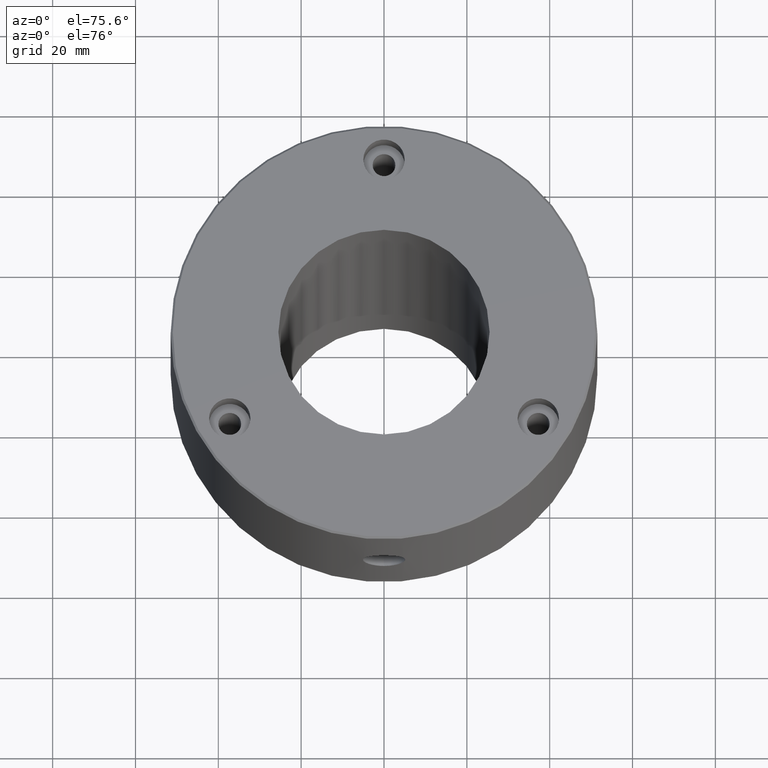
[diagram: clean part render]
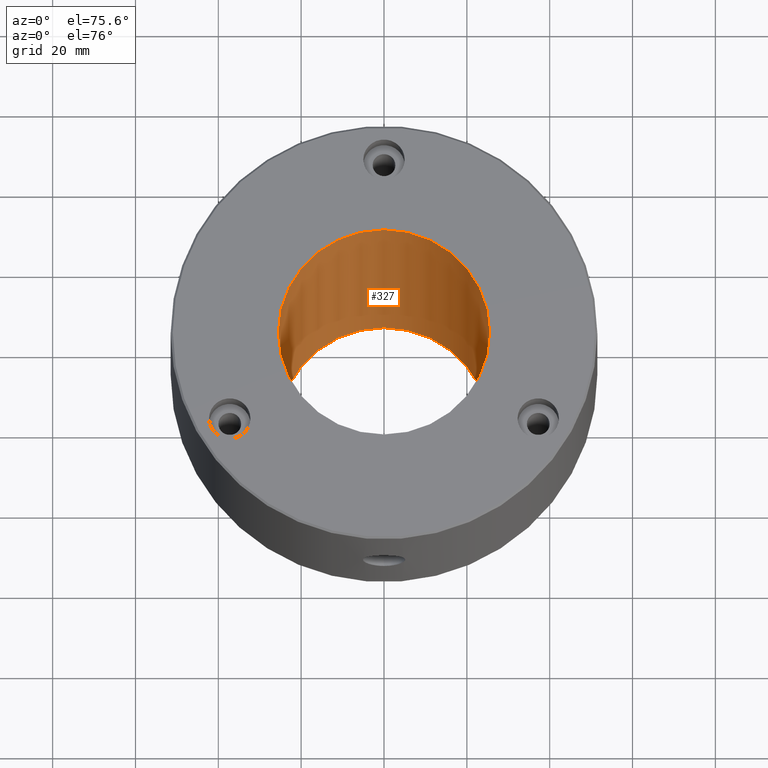
[diagram: same view with one face highlighted and labeled with its STEP entity id]
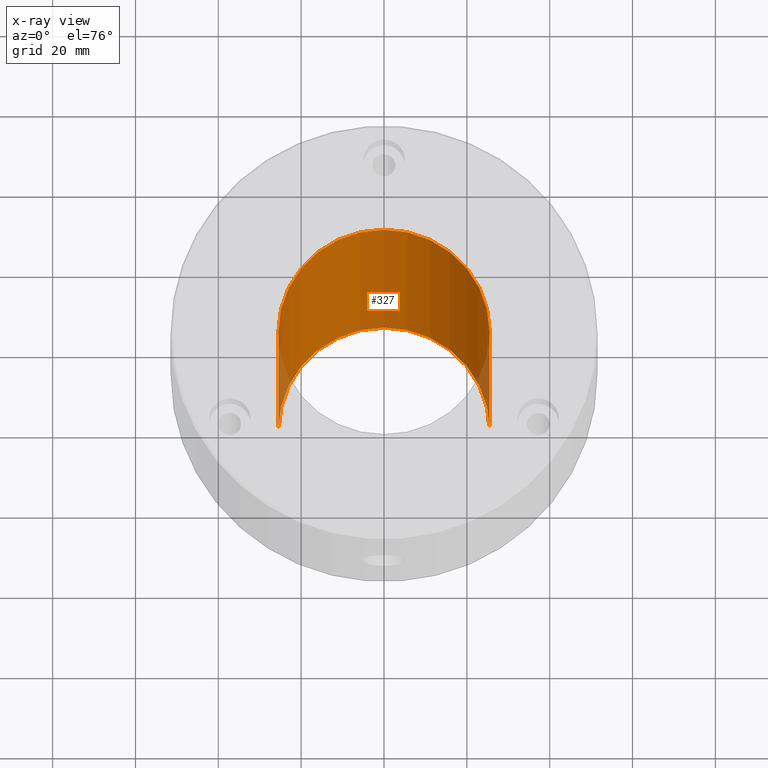
[diagram: x-ray of the same camera — body ghosted, the highlighted face saturated]
A machine part, auxiliary view. The second image highlights one B-rep face of the part: STEP entity #327.
The next image is the same camera in x-ray: the body ghosted, the highlighted face saturated — about 4% of this face is hidden behind the body in this view.
In plain terms, the highlighted cylindrical surface (partial cylindrical patch) has radius 25.5 mm, axis along (-0, -0, -1).
Its self-contained STEP definition (entity closure, byte-faithful):
#19 = VECTOR ( 'NONE', #207, 1000.000000000000000 ) ;
#22 = VECTOR ( 'NONE', #1223, 1000.000000000000000 ) ;
#74 = EDGE_CURVE ( 'NONE', #1121, #927, #299, .T. ) ;
#121 = DIRECTION ( 'NONE',  ( -1.000000000000000000, 0.000000000000000000, 0.000000000000000000 ) ) ;
#124 = AXIS2_PLACEMENT_3D ( 'NONE', #1184, #231, #617 ) ;
#207 = DIRECTION ( 'NONE',  ( -0.000000000000000000, -0.000000000000000000, -1.000000000000000000 ) ) ;
#231 = DIRECTION ( 'NONE',  ( -0.000000000000000000, -0.000000000000000000, -1.000000000000000000 ) ) ;
#275 = CIRCLE ( 'NONE', #506, 25.50000000000000000 ) ;
#278 = ORIENTED_EDGE ( 'NONE', *, *, #766, .F. ) ;
#299 = LINE ( 'NONE', #1065, #19 ) ;
#327 = ADVANCED_FACE ( 'NONE', ( #1004 ), #1100, .F. ) ;
#402 = CARTESIAN_POINT ( 'NONE',  ( 0.000000000000000000, 0.000000000000000000, -95.00000000000000000 ) ) ;
#410 = CIRCLE ( 'NONE', #786, 25.50000000000000000 ) ;
#453 = CARTESIAN_POINT ( 'NONE',  ( 0.000000000000000000, 0.000000000000000000, 0.000000000000000000 ) ) ;
#476 = CARTESIAN_POINT ( 'NONE',  ( -25.50000000000000000, 0.000000000000000000, 0.000000000000000000 ) ) ;
#484 = DIRECTION ( 'NONE',  ( 0.000000000000000000, 0.000000000000000000, -1.000000000000000000 ) ) ;
#506 = AXIS2_PLACEMENT_3D ( 'NONE', #453, #1215, #723 ) ;
#572 = EDGE_LOOP ( 'NONE', ( #828, #278, #1000, #1069 ) ) ;
#603 = VERTEX_POINT ( 'NONE', #1087 ) ;
#617 = DIRECTION ( 'NONE',  ( -1.000000000000000000, 0.000000000000000000, 0.000000000000000000 ) ) ;
#723 = DIRECTION ( 'NONE',  ( -1.000000000000000000, 0.000000000000000000, 0.000000000000000000 ) ) ;
#758 = EDGE_CURVE ( 'NONE', #603, #812, #833, .T. ) ;
#766 = EDGE_CURVE ( 'NONE', #1121, #603, #275, .T. ) ;
#786 = AXIS2_PLACEMENT_3D ( 'NONE', #402, #484, #121 ) ;
#812 = VERTEX_POINT ( 'NONE', #1054 ) ;
#828 = ORIENTED_EDGE ( 'NONE', *, *, #758, .F. ) ;
#833 = LINE ( 'NONE', #940, #22 ) ;
#927 = VERTEX_POINT ( 'NONE', #1234 ) ;
#940 = CARTESIAN_POINT ( 'NONE',  ( 25.50000000000000000, 3.122849337825750222E-15, 0.000000000000000000 ) ) ;
#1000 = ORIENTED_EDGE ( 'NONE', *, *, #74, .T. ) ;
#1004 = FACE_OUTER_BOUND ( 'NONE', #572, .T. ) ;
#1021 = EDGE_CURVE ( 'NONE', #927, #812, #410, .T. ) ;
#1054 = CARTESIAN_POINT ( 'NONE',  ( 25.50000000000000000, 3.122849337825750222E-15, -95.00000000000000000 ) ) ;
#1065 = CARTESIAN_POINT ( 'NONE',  ( -25.50000000000000000, 0.000000000000000000, 0.000000000000000000 ) ) ;
#1069 = ORIENTED_EDGE ( 'NONE', *, *, #1021, .T. ) ;
#1087 = CARTESIAN_POINT ( 'NONE',  ( 25.50000000000000000, 3.122849337825750222E-15, 0.000000000000000000 ) ) ;
#1100 = CYLINDRICAL_SURFACE ( 'NONE', #124, 25.50000000000000000 ) ;
#1121 = VERTEX_POINT ( 'NONE', #476 ) ;
#1184 = CARTESIAN_POINT ( 'NONE',  ( 0.000000000000000000, 0.000000000000000000, 0.000000000000000000 ) ) ;
#1215 = DIRECTION ( 'NONE',  ( 0.000000000000000000, 0.000000000000000000, -1.000000000000000000 ) ) ;
#1223 = DIRECTION ( 'NONE',  ( -0.000000000000000000, -0.000000000000000000, -1.000000000000000000 ) ) ;
#1234 = CARTESIAN_POINT ( 'NONE',  ( -25.50000000000000000, 0.000000000000000000, -95.00000000000000000 ) ) ;